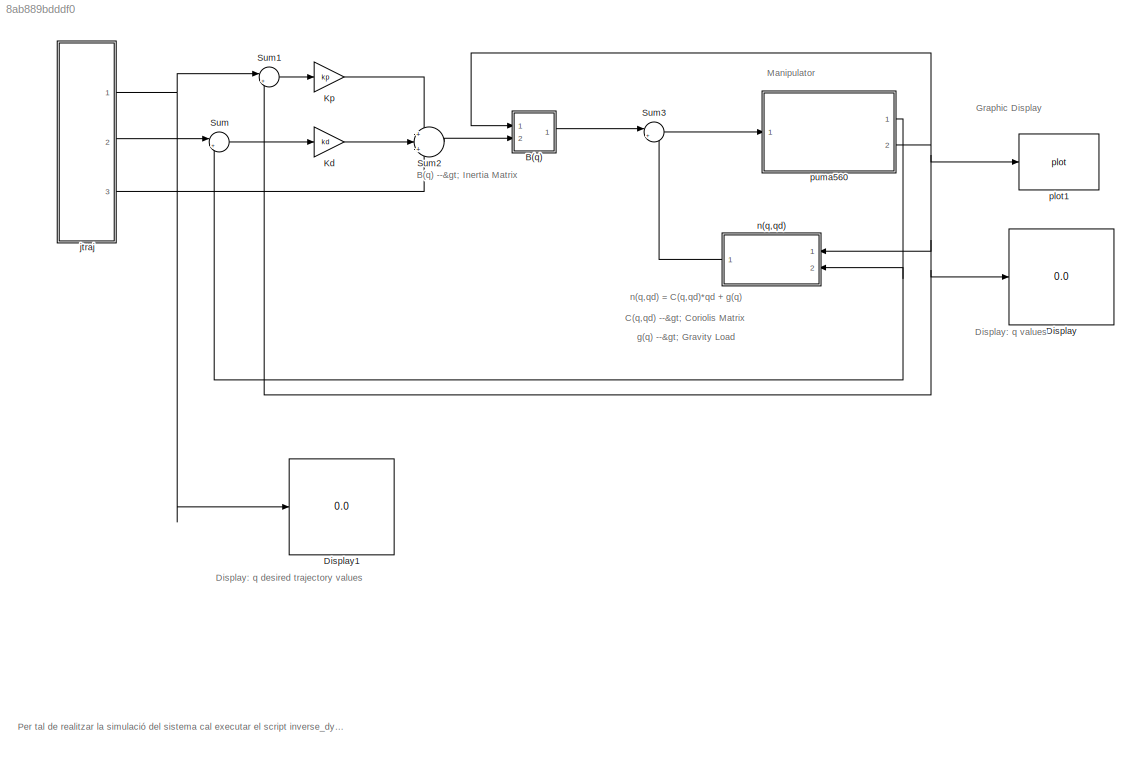
MODEL slx_8ab889bdddf0
KIND model
CONFIG AbsTol = auto
CONFIG EnableMultiTasking = off
CONFIG FixedStep = 0.2
CONFIG MaxStep = auto
CONFIG MinStep = auto
CONFIG RelTol = 1e-3
CONFIG SampleTimeConstraint = Unconstrained
CONFIG Solver = FixedStepAuto
CONFIG SolverName = FixedStepAuto
CONFIG StartTime = 0.0
CONFIG StopTime = 100
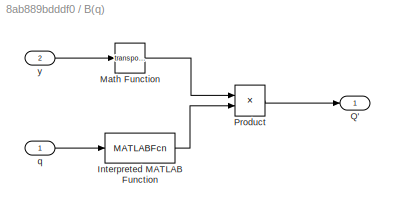
BLOCK [SubSystem] B(q)
  Ports = [2, 1]
  RequestExecContextInheritance = off
  Variant = off
BLOCK [MATLABFcn] B(q)/Interpreted MATLAB Function
  MATLABFcn = p560.inertia(u')
  Output1D = off
  Ports = [1, 1]
BLOCK [Math] B(q)/Math Function
  Operator = transpose
  Ports = [1, 1]
BLOCK [Product] B(q)/Product
  InputSameDT = off
  Multiplication = Matrix(*)
  OutDataTypeStr = Inherit: Inherit via internal rule
  Ports = [2, 1]
  RndMeth = Floor
  SaturateOnIntegerOverflow = off
BLOCK [Outport] B(q)/Q'
  IconDisplay = Port number
BLOCK [Inport] B(q)/q 
  IconDisplay = Port number
BLOCK [Inport] B(q)/y
  IconDisplay = Port number
  Port = 2
BLOCK [Display] Display
  Decimation = 1
  Ports = [1]
BLOCK [Display] Display1
  Decimation = 1
  Ports = [1]
BLOCK [Gain] Kd
  Gain = kd
  OutDataTypeStr = Inherit: Inherit via internal rule
  ParamDataTypeStr = Inherit: Inherit via internal rule
  SaturateOnIntegerOverflow = off
BLOCK [Gain] Kp
  Gain = kp
  OutDataTypeStr = Inherit: Inherit via internal rule
  ParamDataTypeStr = Inherit: Inherit via internal rule
  SaturateOnIntegerOverflow = off
BLOCK [Sum] Sum
  IconShape = round
  InputSameDT = off
  Inputs = |+-
  OutDataTypeStr = Inherit: Inherit via internal rule
  Ports = [2, 1]
  SaturateOnIntegerOverflow = off
BLOCK [Sum] Sum1
  IconShape = round
  InputSameDT = off
  Inputs = |+-
  OutDataTypeStr = Inherit: Inherit via internal rule
  Ports = [2, 1]
  SaturateOnIntegerOverflow = off
BLOCK [Sum] Sum2
  IconShape = round
  InputSameDT = off
  Inputs = +|+|+
  OutDataTypeStr = Inherit: Inherit via internal rule
  Ports = [3, 1]
  SaturateOnIntegerOverflow = off
BLOCK [Sum] Sum3
  IconShape = round
  InputSameDT = off
  Inputs = |++
  OutDataTypeStr = Inherit: Inherit via internal rule
  Ports = [2, 1]
  SaturateOnIntegerOverflow = off
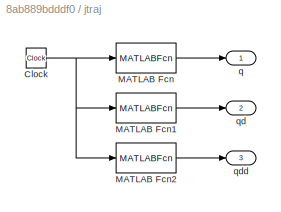
BLOCK [SubSystem] jtraj
  AncestorBlock = roblocks/Toolbox/jtraj
  Ports = [0, 3]
  RequestExecContextInheritance = off
  Variant = off
BLOCK [Clock] jtraj/Clock
BLOCK [MATLABFcn] jtraj/MATLAB Fcn
  MATLABFcn = interp1(t,q,min(u,tmax))
  OutputDimensions = n
  Ports = [1, 1]
  SampleTime = ts
BLOCK [MATLABFcn] jtraj/MATLAB Fcn1
  MATLABFcn = interp1(t,qd,min(u,tmax))
  OutputDimensions = n
  Ports = [1, 1]
  SampleTime = ts
BLOCK [MATLABFcn] jtraj/MATLAB Fcn2
  MATLABFcn = interp1(t,qdd,min(u,tmax))
  OutputDimensions = n
  Ports = [1, 1]
  SampleTime = ts
BLOCK [Outport] jtraj/q
  IconDisplay = Port number
BLOCK [Outport] jtraj/qd
  IconDisplay = Port number
  Port = 2
BLOCK [Outport] jtraj/qdd
  IconDisplay = Port number
  Port = 3
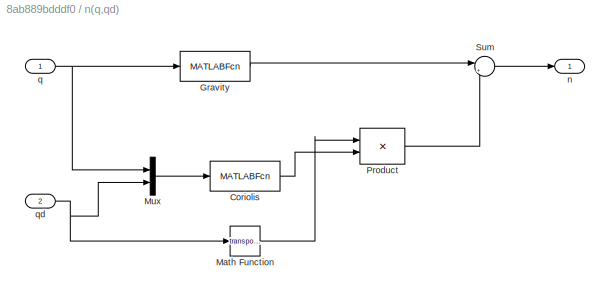
BLOCK [SubSystem] n(q,qd) 
  Ports = [2, 1]
  RequestExecContextInheritance = off
  Variant = off
BLOCK [MATLABFcn] n(q,qd) / Coriolis
  MATLABFcn = p560.coriolis(u(1:6)',u(7:12)')
  Output1D = off
  OutputDimensions = [6,6]
  Ports = [1, 1]
BLOCK [MATLABFcn] n(q,qd) / Gravity 
  MATLABFcn = p560.gravload(u')
  Output1D = off
  Ports = [1, 1]
BLOCK [Math] n(q,qd) /Math Function
  Operator = transpose
  Ports = [1, 1]
BLOCK [Mux] n(q,qd) /Mux
  DisplayOption = bar
  Inputs = 2
  Ports = [2, 1]
BLOCK [Product] n(q,qd) /Product
  InputSameDT = off
  Multiplication = Matrix(*)
  OutDataTypeStr = Inherit: Inherit via internal rule
  Ports = [2, 1]
  RndMeth = Floor
  SaturateOnIntegerOverflow = off
BLOCK [Sum] n(q,qd) /Sum
  IconShape = round
  InputSameDT = off
  Inputs = |++
  OutDataTypeStr = Inherit: Inherit via internal rule
  Ports = [2, 1]
  SaturateOnIntegerOverflow = off
BLOCK [Outport] n(q,qd) /n
  IconDisplay = Port number
BLOCK [Inport] n(q,qd) /q
  IconDisplay = Port number
BLOCK [Inport] n(q,qd) /qd 
  IconDisplay = Port number
  Port = 2
BLOCK [Reference] plot1  REF=roblocks/Arm/plot  (lib defined in mdl_2a292b13c81b, mdl_69400f8cfe22, +12 more)
  Ports = [1]
  SourceBlock = roblocks/Arm/plot
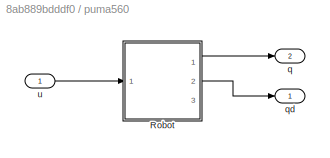
BLOCK [SubSystem] puma560
  Ports = [1, 2]
  RequestExecContextInheritance = off
  Variant = off
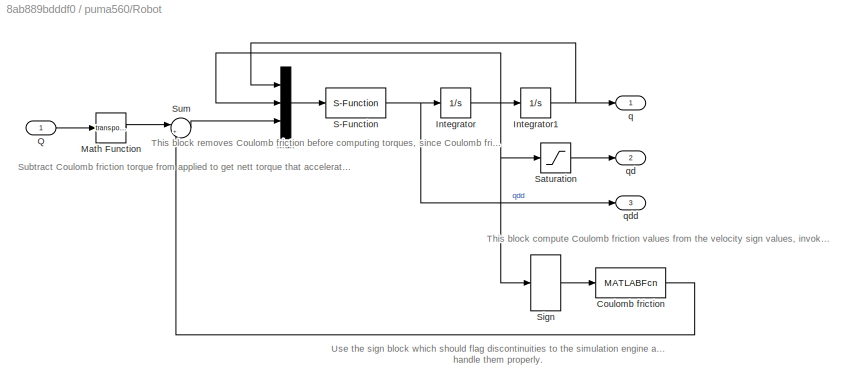
BLOCK [SubSystem] puma560/Robot
  AncestorBlock = roblocks/Arm/Robot
  Ports = [1, 3]
  RequestExecContextInheritance = off
  Variant = off
BLOCK [MATLABFcn] puma560/Robot/Coulomb friction
  MATLABFcn = slcoulomb(robot,u)
  Output1D = off
  OutputDimensions = [robot.n 1]
  Ports = [1, 1]
BLOCK [Integrator] puma560/Robot/Integrator
  Ports = [1, 1]
BLOCK [Integrator] puma560/Robot/Integrator1
  InitialCondition = q0
  Ports = [1, 1]
BLOCK [Math] puma560/Robot/Math Function
  Operator = transpose
  Ports = [1, 1]
BLOCK [Mux] puma560/Robot/Mux
  DisplayOption = bar
  Inputs = 3
  Ports = [3, 1]
BLOCK [Inport] puma560/Robot/Q
  IconDisplay = Port number
BLOCK [S-Function] puma560/Robot/S-Function
  EnableBusSupport = off
  FunctionName = slaccel
  Parameters = robot.nofriction()
  Ports = [1, 1]
  SFcnIsStateOwnerBlock = off
  SFunctionDeploymentMode = off
BLOCK [Saturate] puma560/Robot/Saturation
  InputPortMap = u0
  LowerLimit = qd_lower_sat_limit
  Ports = [1, 1]
  UpperLimit = qd_upper_sat_limit
  ZeroCross = off
BLOCK [Signum] puma560/Robot/Sign
BLOCK [Sum] puma560/Robot/Sum
  IconShape = round
  InputSameDT = off
  Inputs = |+-
  OutDataTypeStr = Inherit: Inherit via internal rule
  Ports = [2, 1]
  SaturateOnIntegerOverflow = off
BLOCK [Outport] puma560/Robot/q
  IconDisplay = Port number
BLOCK [Outport] puma560/Robot/qd
  IconDisplay = Port number
  Port = 2
BLOCK [Outport] puma560/Robot/qdd
  IconDisplay = Port number
  Port = 3
BLOCK [Outport] puma560/q
  IconDisplay = Port number
  Port = 2
BLOCK [Outport] puma560/qd
  IconDisplay = Port number
BLOCK [Inport] puma560/u
  IconDisplay = Port number
ANNOTATION (root): B(q) --> Inertia Matrix
ANNOTATION (root): C(q,qd) --> Coriolis Matrix
ANNOTATION (root): Display: q desired trajectory values
ANNOTATION (root): Display: q values
ANNOTATION (root): Graphic Display
ANNOTATION (root): Manipulator
ANNOTATION (root): g(q) --> Gravity Load
ANNOTATION (root): n(q,qd) = C(q,qd)*qd + g(q)
ANNOTATION (root): Per tal de realitzar la simulació del sistema cal executar el script inverse_dynamics_init.m que inicialitza les variables i paràmetres del model.
ANNOTATION puma560/Robot: Subtract Coulomb friction torque from applied to get nett torque that accelerates the joints
ANNOTATION puma560/Robot: This block compute Coulomb friction values from the velocity sign values, invokes slcoulomb to do that
ANNOTATION puma560/Robot: This block removes Coulomb friction before computing torques, since Coulomb friction now done by the red wiring
ANNOTATION puma560/Robot: Use the sign block which should flag discontinuities to the simulation engine and handle them properly.
LINE B(q)/Interpreted MATLAB Function:1 -> B(q)/Product:2
LINE B(q)/Math Function:1 -> B(q)/Product:1
LINE B(q)/Product:1 -> B(q)/Q':1
LINE B(q)/q :1 -> B(q)/Interpreted MATLAB Function:1
LINE B(q)/y:1 -> B(q)/Math Function:1
LINE B(q):1 -> Sum3:1
LINE Kd:1 -> Sum2:2
LINE Kp:1 -> Sum2:1
LINE Sum1:1 -> Kp:1
LINE Sum2:1 -> B(q):2
LINE Sum3:1 -> puma560:1
LINE Sum:1 -> Kd:1
NET jtraj:1 -> Display1:1, Sum1:1
LINE jtraj:2 -> Sum:1
LINE jtraj:3 -> Sum2:3
LINE n(q,qd) / Coriolis:1 -> n(q,qd) /Product:2
LINE n(q,qd) / Gravity :1 -> n(q,qd) /Sum:1
LINE n(q,qd) /Math Function:1 -> n(q,qd) /Product:1
LINE n(q,qd) /Mux:1 -> n(q,qd) / Coriolis:1
LINE n(q,qd) /Product:1 -> n(q,qd) /Sum:2
LINE n(q,qd) /Sum:1 -> n(q,qd) /n:1
NET n(q,qd) /q:1 -> n(q,qd) / Gravity :1, n(q,qd) /Mux:1
NET n(q,qd) /qd :1 -> n(q,qd) /Math Function:1, n(q,qd) /Mux:2
LINE n(q,qd) :1 -> Sum3:2
LINE puma560/Robot:1 -> puma560/q:1
LINE puma560/Robot:2 -> puma560/qd:1
LINE puma560/u:1 -> puma560/Robot:1
NET puma560:1 -> Sum:2, n(q,qd) :2
NET puma560:2 -> B(q):1, Display:1, Sum1:2, n(q,qd) :1, plot1:1
note: NET lines group one-source signal fan-out (src -> all destinations, sorted); 1:1 wires keep LINE
